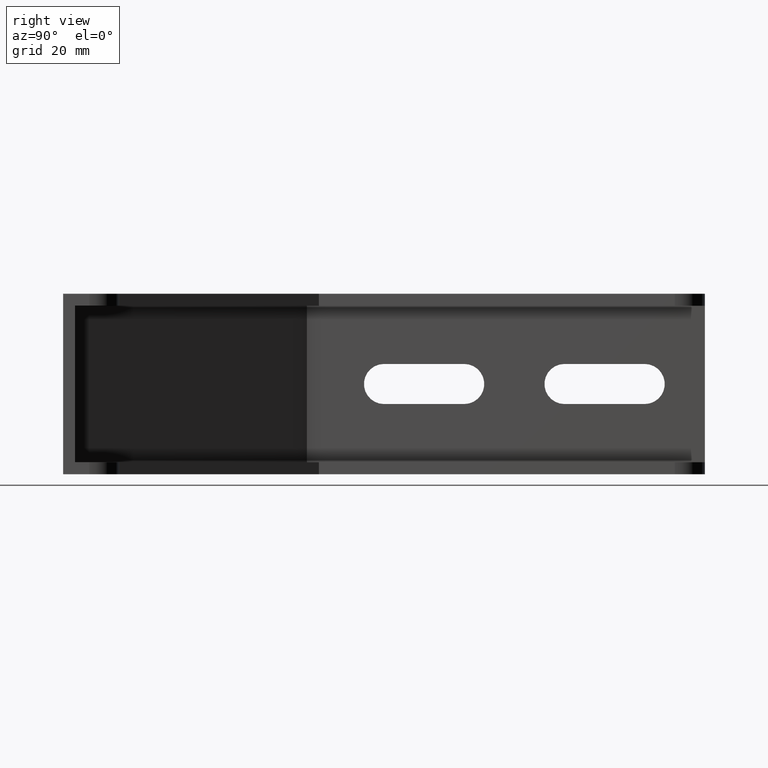
[diagram: clean part render]
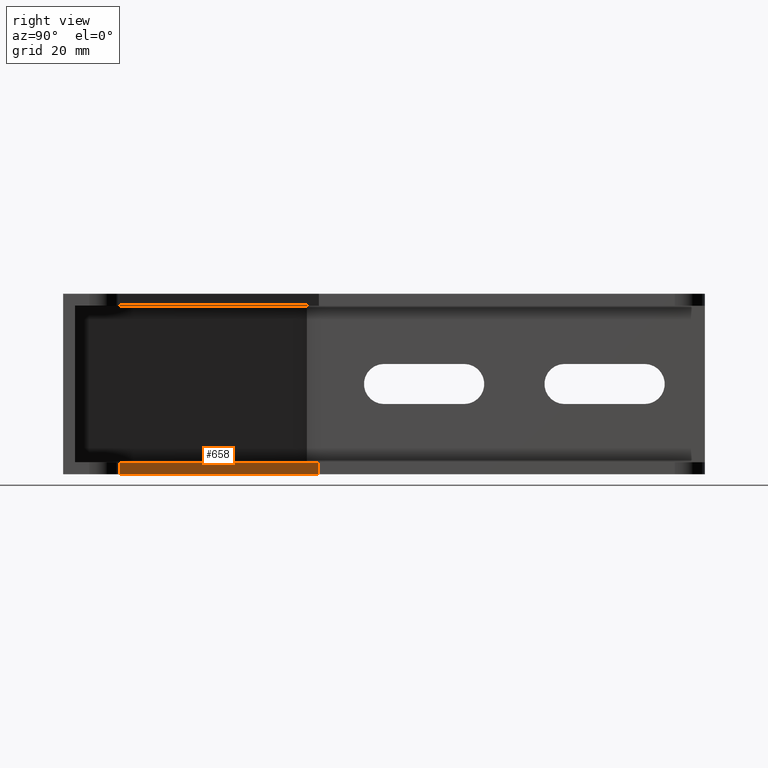
[diagram: same view with one face highlighted and labeled with its STEP entity id]
A machine part, right view. The second image highlights one B-rep face of the part: STEP entity #658.
In plain terms, the highlighted planar face has unit normal (0.8634, 0.5045, 0).
Its self-contained STEP definition (entity closure, byte-faithful):
#41=PLANE('',#715);
#74=FACE_OUTER_BOUND('',#114,.T.);
#114=EDGE_LOOP('',(#605,#606,#607,#608));
#126=LINE('',#932,#196);
#150=LINE('',#997,#220);
#167=LINE('',#1035,#237);
#184=LINE('',#1079,#254);
#196=VECTOR('',#745,57.6352920439079);
#220=VECTOR('',#799,57.6352920439079);
#237=VECTOR('',#832,3.);
#254=VECTOR('',#885,3.);
#291=VERTEX_POINT('',#929);
#292=VERTEX_POINT('',#931);
#317=VERTEX_POINT('',#994);
#318=VERTEX_POINT('',#996);
#355=EDGE_CURVE('',#291,#292,#126,.T.);
#388=EDGE_CURVE('',#318,#317,#150,.T.);
#408=EDGE_CURVE('',#291,#318,#167,.T.);
#430=EDGE_CURVE('',#292,#317,#184,.T.);
#605=ORIENTED_EDGE('',*,*,#388,.T.);
#606=ORIENTED_EDGE('',*,*,#430,.F.);
#607=ORIENTED_EDGE('',*,*,#355,.F.);
#608=ORIENTED_EDGE('',*,*,#408,.T.);
#658=ADVANCED_FACE('',(#74),#41,.T.);
#715=AXIS2_PLACEMENT_3D('',#1085,#894,#895);
#745=DIRECTION('',(0.504527623815019,-0.863395550606772,0.));
#799=DIRECTION('',(0.504527623815019,-0.863395550606772,0.));
#832=DIRECTION('',(0.,0.,1.));
#885=DIRECTION('',(0.,0.,1.));
#894=DIRECTION('center_axis',(0.863395550606772,0.504527623815019,0.));
#895=DIRECTION('ref_axis',(-0.50452762381502,0.863395550606771,0.));
#929=CARTESIAN_POINT('',(-61.0444887501912,63.762054708632,-22.5));
#931=CARTESIAN_POINT('',(-31.9658918073937,14.,-22.5));
#932=CARTESIAN_POINT('',(-31.9658918073937,14.,-22.5));
#994=CARTESIAN_POINT('',(-31.9658918073937,14.,-19.5));
#996=CARTESIAN_POINT('',(-61.0444887501912,63.762054708632,-19.5));
#997=CARTESIAN_POINT('',(-46.4168887838792,38.7299174562225,-19.5));
#1035=CARTESIAN_POINT('',(-61.0444887501912,63.762054708632,0.));
#1079=CARTESIAN_POINT('',(-31.9658918073937,14.,0.));
#1085=CARTESIAN_POINT('Origin',(-31.9658918073937,14.,0.));